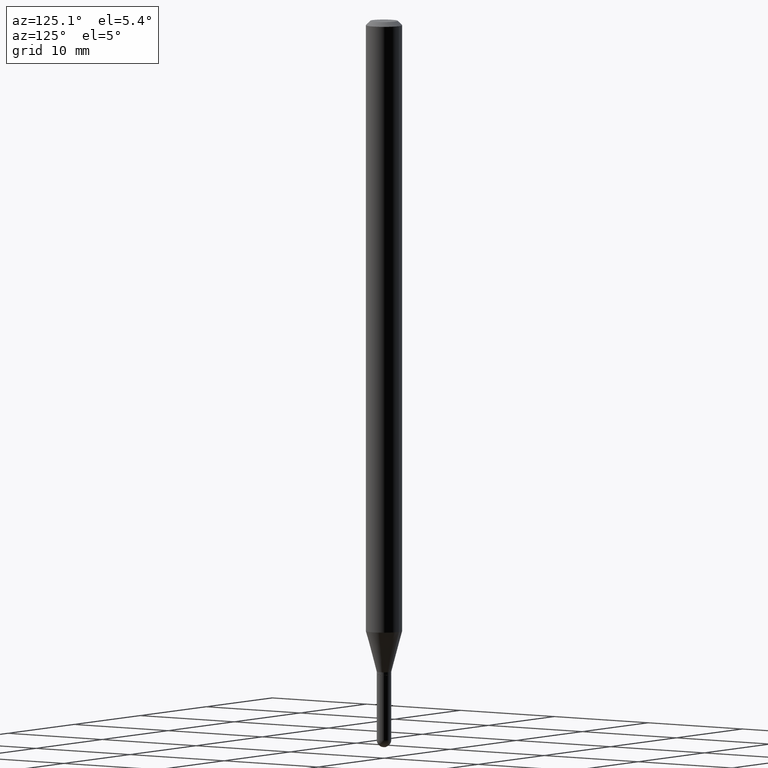
[diagram: clean part render]
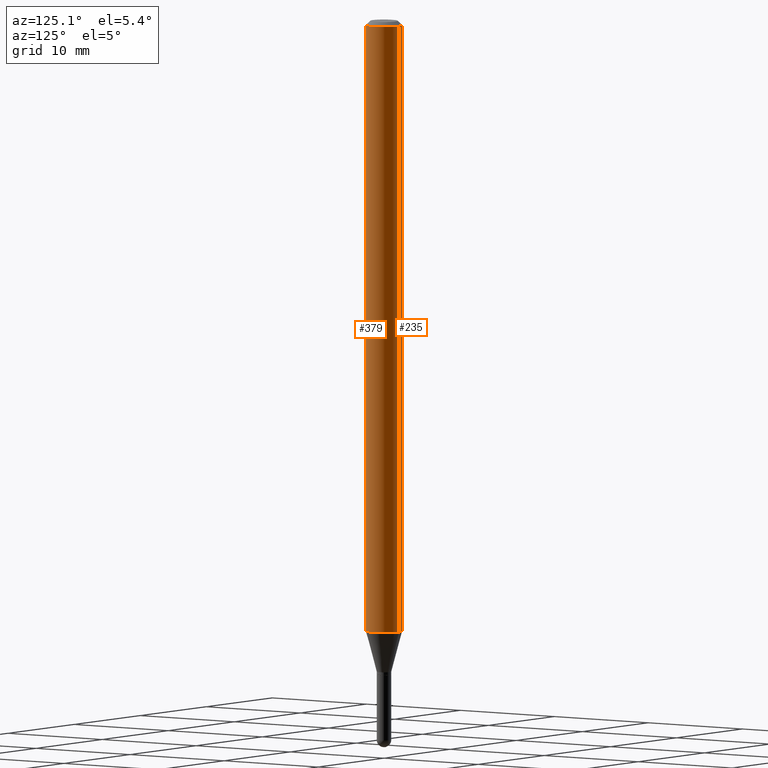
[diagram: same view with one multi-face feature highlighted, each face labeled with its STEP entity id]
A machine part, auxiliary view. The highlighted faces form ONE feature: a constant-radius fillet chain: 2 tangent blend faces with common blend radius 1.5875 mm. The faces share edges in the B-rep.
Their STEP definitions:
[1] entity #379 (Cylinder):
#7 = DIRECTION ( 'NONE',  ( -2.445439721042902247E-29, 3.491522990422248684E-15, 1.000000000000000000 ) ) ;
#14 = CIRCLE ( 'NONE', #317, 0.06250000000000000000 ) ;
#61 = EDGE_CURVE ( 'NONE', #106, #212, #479, .T. ) ;
#64 = DIRECTION ( 'NONE',  ( -2.445439721042901967E-29, 3.491522990422248290E-15, 1.000000000000000000 ) ) ;
#66 = VERTEX_POINT ( 'NONE', #344 ) ;
#68 = DIRECTION ( 'NONE',  ( -2.445439721042902247E-29, 3.491522990422248684E-15, 1.000000000000000000 ) ) ;
#69 = ORIENTED_EDGE ( 'NONE', *, *, #151, .T. ) ;
#76 = DIRECTION ( 'NONE',  ( -2.445439721042902247E-29, 3.491522990422248684E-15, 1.000000000000000000 ) ) ;
#81 = ORIENTED_EDGE ( 'NONE', *, *, #61, .T. ) ;
#88 = VERTEX_POINT ( 'NONE', #466 ) ;
#94 = DIRECTION ( 'NONE',  ( -6.982962677686265922E-15, -1.000000000000000000, 3.491522990422248684E-15 ) ) ;
#106 = VERTEX_POINT ( 'NONE', #308 ) ;
#124 = EDGE_CURVE ( 'NONE', #88, #66, #434, .T. ) ;
#127 = CARTESIAN_POINT ( 'NONE',  ( 4.440892098500625669E-16, 0.06250000000000000000, -2.182201869013905427E-16 ) ) ;
#140 = VECTOR ( 'NONE', #468, 39.37007874015748143 ) ;
#151 = EDGE_CURVE ( 'NONE', #88, #106, #430, .T. ) ;
#175 = ORIENTED_EDGE ( 'NONE', *, *, #267, .F. ) ;
#212 = VERTEX_POINT ( 'NONE', #471 ) ;
#227 = CARTESIAN_POINT ( 'NONE',  ( 3.668159581564433876E-31, -5.237284485633487090E-17, -0.01500000000000032904 ) ) ;
#228 = CARTESIAN_POINT ( 'NONE',  ( 5.135541026919384969E-29, -7.332366203693942518E-15, -2.100048094716168379 ) ) ;
#232 = AXIS2_PLACEMENT_3D ( 'NONE', #228, #76, #389 ) ;
#267 = EDGE_CURVE ( 'NONE', #66, #212, #14, .T. ) ;
#287 = CARTESIAN_POINT ( 'NONE',  ( 0.000000000000000000, 0.000000000000000000, 0.000000000000000000 ) ) ;
#300 = AXIS2_PLACEMENT_3D ( 'NONE', #287, #7, #94 ) ;
#308 = CARTESIAN_POINT ( 'NONE',  ( 4.440892098501137935E-16, 0.06249999999999265171, -2.100048094716168823 ) ) ;
#311 = DIRECTION ( 'NONE',  ( -6.982962677686265922E-15, -1.000000000000000000, 3.483106191921935554E-15 ) ) ;
#316 = CARTESIAN_POINT ( 'NONE',  ( -4.364351673553916201E-16, -0.06250000000000000000, 2.182201869013905427E-16 ) ) ;
#317 = AXIS2_PLACEMENT_3D ( 'NONE', #227, #68, #311 ) ;
#328 = FACE_OUTER_BOUND ( 'NONE', #454, .T. ) ;
#344 = CARTESIAN_POINT ( 'NONE',  ( -4.364351673553912750E-16, -0.06250000000000005551, -0.01500000000000011047 ) ) ;
#345 = VECTOR ( 'NONE', #64, 39.37007874015748143 ) ;
#359 = CYLINDRICAL_SURFACE ( 'NONE', #300, 0.06250000000000000000 ) ;
#372 = ORIENTED_EDGE ( 'NONE', *, *, #124, .F. ) ;
#379 = ADVANCED_FACE ( 'NONE', ( #328 ), #359, .T. ) ;
#389 = DIRECTION ( 'NONE',  ( -6.982962677686265922E-15, -1.000000000000000000, 4.370956789862821150E-15 ) ) ;
#430 = CIRCLE ( 'NONE', #232, 0.06250000000000000000 ) ;
#434 = LINE ( 'NONE', #316, #140 ) ;
#454 = EDGE_LOOP ( 'NONE', ( #69, #81, #175, #372 ) ) ;
#466 = CARTESIAN_POINT ( 'NONE',  ( -4.364351673553404428E-16, -0.06250000000000735523, -2.100048094716167935 ) ) ;
#468 = DIRECTION ( 'NONE',  ( -2.445439721042901967E-29, 3.491522990422248290E-15, 1.000000000000000000 ) ) ;
#471 = CARTESIAN_POINT ( 'NONE',  ( 4.440892098501142866E-16, 0.06249999999999995143, -0.01500000000000054588 ) ) ;
#479 = LINE ( 'NONE', #127, #345 ) ;
[2] entity #235 (Cylinder):
#48 = AXIS2_PLACEMENT_3D ( 'NONE', #132, #483, #245 ) ;
#61 = EDGE_CURVE ( 'NONE', #106, #212, #479, .T. ) ;
#63 = EDGE_LOOP ( 'NONE', ( #342, #244, #260, #191 ) ) ;
#64 = DIRECTION ( 'NONE',  ( -2.445439721042901967E-29, 3.491522990422248290E-15, 1.000000000000000000 ) ) ;
#66 = VERTEX_POINT ( 'NONE', #344 ) ;
#88 = VERTEX_POINT ( 'NONE', #466 ) ;
#91 = DIRECTION ( 'NONE',  ( -6.982962677686265922E-15, -1.000000000000000000, 3.483106191921935554E-15 ) ) ;
#98 = AXIS2_PLACEMENT_3D ( 'NONE', #135, #493, #91 ) ;
#106 = VERTEX_POINT ( 'NONE', #308 ) ;
#124 = EDGE_CURVE ( 'NONE', #88, #66, #434, .T. ) ;
#127 = CARTESIAN_POINT ( 'NONE',  ( 4.440892098500625669E-16, 0.06250000000000000000, -2.182201869013905427E-16 ) ) ;
#132 = CARTESIAN_POINT ( 'NONE',  ( 5.135541026919384969E-29, -7.332366203693942518E-15, -2.100048094716168379 ) ) ;
#135 = CARTESIAN_POINT ( 'NONE',  ( 3.668159581564433876E-31, -5.237284485633487090E-17, -0.01500000000000032904 ) ) ;
#140 = VECTOR ( 'NONE', #468, 39.37007874015748143 ) ;
#156 = EDGE_CURVE ( 'NONE', #106, #88, #200, .T. ) ;
#164 = DIRECTION ( 'NONE',  ( -6.982962677686265922E-15, -1.000000000000000000, 3.491522990422248684E-15 ) ) ;
#191 = ORIENTED_EDGE ( 'NONE', *, *, #495, .F. ) ;
#200 = CIRCLE ( 'NONE', #48, 0.06250000000000000000 ) ;
#212 = VERTEX_POINT ( 'NONE', #471 ) ;
#235 = ADVANCED_FACE ( 'NONE', ( #326 ), #275, .T. ) ;
#244 = ORIENTED_EDGE ( 'NONE', *, *, #156, .T. ) ;
#245 = DIRECTION ( 'NONE',  ( -6.982962677686265922E-15, -1.000000000000000000, 4.370956789862821150E-15 ) ) ;
#260 = ORIENTED_EDGE ( 'NONE', *, *, #124, .T. ) ;
#275 = CYLINDRICAL_SURFACE ( 'NONE', #509, 0.06250000000000000000 ) ;
#308 = CARTESIAN_POINT ( 'NONE',  ( 4.440892098501137935E-16, 0.06249999999999265171, -2.100048094716168823 ) ) ;
#316 = CARTESIAN_POINT ( 'NONE',  ( -4.364351673553916201E-16, -0.06250000000000000000, 2.182201869013905427E-16 ) ) ;
#326 = FACE_OUTER_BOUND ( 'NONE', #63, .T. ) ;
#342 = ORIENTED_EDGE ( 'NONE', *, *, #61, .F. ) ;
#344 = CARTESIAN_POINT ( 'NONE',  ( -4.364351673553912750E-16, -0.06250000000000005551, -0.01500000000000011047 ) ) ;
#345 = VECTOR ( 'NONE', #64, 39.37007874015748143 ) ;
#397 = DIRECTION ( 'NONE',  ( -2.445439721042902247E-29, 3.491522990422248684E-15, 1.000000000000000000 ) ) ;
#400 = CIRCLE ( 'NONE', #98, 0.06250000000000000000 ) ;
#434 = LINE ( 'NONE', #316, #140 ) ;
#438 = CARTESIAN_POINT ( 'NONE',  ( 0.000000000000000000, 0.000000000000000000, 0.000000000000000000 ) ) ;
#466 = CARTESIAN_POINT ( 'NONE',  ( -4.364351673553404428E-16, -0.06250000000000735523, -2.100048094716167935 ) ) ;
#468 = DIRECTION ( 'NONE',  ( -2.445439721042901967E-29, 3.491522990422248290E-15, 1.000000000000000000 ) ) ;
#471 = CARTESIAN_POINT ( 'NONE',  ( 4.440892098501142866E-16, 0.06249999999999995143, -0.01500000000000054588 ) ) ;
#479 = LINE ( 'NONE', #127, #345 ) ;
#483 = DIRECTION ( 'NONE',  ( -2.445439721042902247E-29, 3.491522990422248684E-15, 1.000000000000000000 ) ) ;
#493 = DIRECTION ( 'NONE',  ( -2.445439721042902247E-29, 3.491522990422248684E-15, 1.000000000000000000 ) ) ;
#495 = EDGE_CURVE ( 'NONE', #212, #66, #400, .T. ) ;
#509 = AXIS2_PLACEMENT_3D ( 'NONE', #438, #397, #164 ) ;